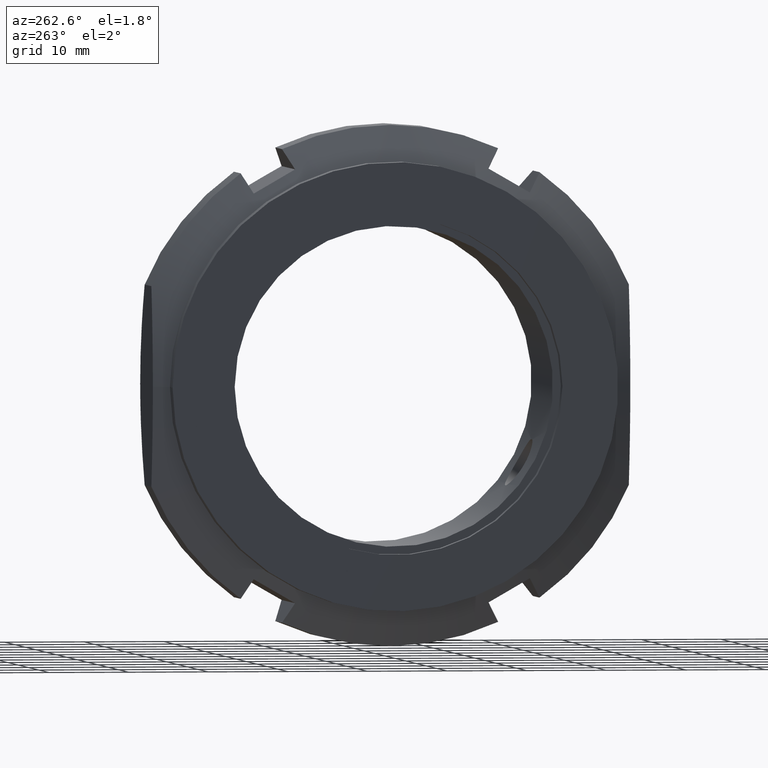
[diagram: clean part render]
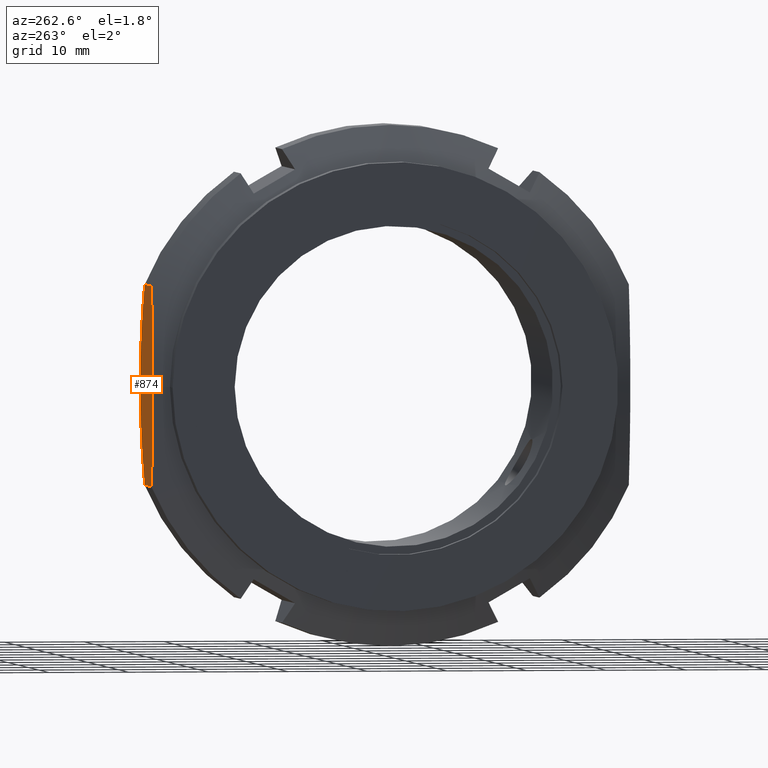
[diagram: same view with one face highlighted and labeled with its STEP entity id]
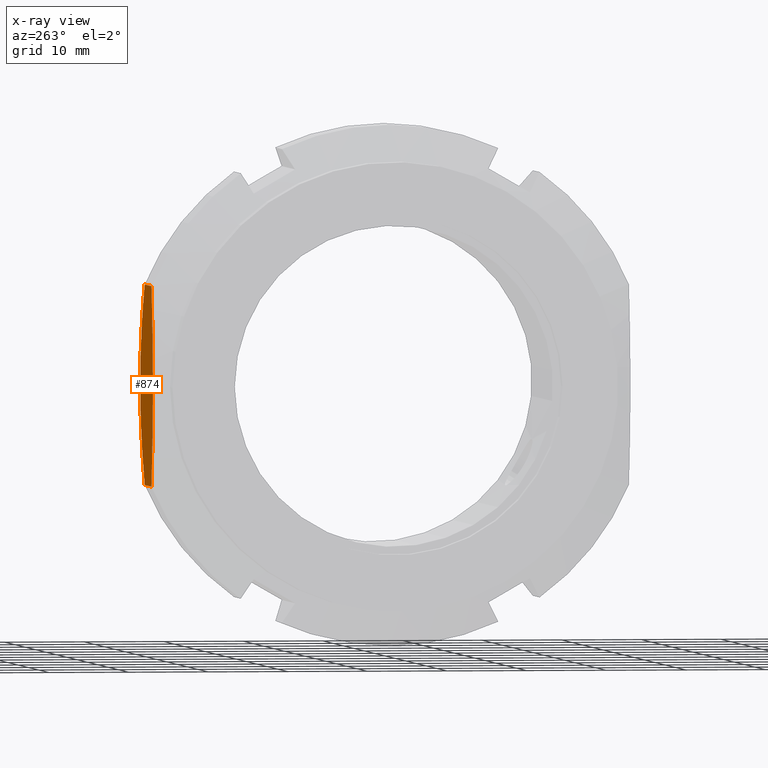
[diagram: x-ray of the same camera — body ghosted, the highlighted face saturated]
A machine part, auxiliary view. The second image highlights one B-rep face of the part: STEP entity #874.
The next image is the same camera in x-ray: the body ghosted, the highlighted face saturated — about 0% of this face is hidden behind the body in this view.
In plain terms, the highlighted planar face has unit normal (0, -1, 0).
Its self-contained STEP definition (entity closure, byte-faithful):
#517=CARTESIAN_POINT('',(5.098076211353302,30.00000000000005,12.499999999999854));
#518=VERTEX_POINT('',#517);
#526=CARTESIAN_POINT('',(5.098076211353302,30.000000000000039,-12.49999999999989));
#527=VERTEX_POINT('',#526);
#528=CARTESIAN_POINT('',(5.098076211353303,30.00000000000005,12.49999999999986));
#529=CARTESIAN_POINT('',(2.322353763326312,30.000000000000043,-1.569926E-014));
#530=CARTESIAN_POINT('',(5.098076211353302,30.000000000000039,-12.499999999999886));
#538=(BOUNDED_CURVE()B_SPLINE_CURVE(2,(#528,#529,#530),.UNSPECIFIED.,.F.,.U.)B_SPLINE_CURVE_WITH_KNOTS((3,3),(0.0,2.516611478423557),.UNSPECIFIED.)CURVE()GEOMETRIC_REPRESENTATION_ITEM()RATIONAL_B_SPLINE_CURVE((1.0,1.083333333333331,1.0))REPRESENTATION_ITEM(''));
#539=EDGE_CURVE('',#518,#527,#538,.T.);
#800=CARTESIAN_POINT('',(11.607695154586724,30.00000000000005,12.499999999999861));
#801=VERTEX_POINT('',#800);
#809=CARTESIAN_POINT('',(11.607695154586722,30.00000000000005,12.499999999999854));
#810=DIRECTION('',(-1.0,0.0,0.0));
#811=VECTOR('',#810,6.509618943233421);
#812=LINE('',#809,#811);
#813=EDGE_CURVE('',#801,#518,#812,.T.);
#844=CARTESIAN_POINT('',(0.0,30.000000000000089,100.0));
#845=DIRECTION('',(0.0,-1.0,0.0));
#846=DIRECTION('',(0.0,0.0,-1.0));
#847=AXIS2_PLACEMENT_3D('',#844,#845,#846);
#848=PLANE('',#847);
#849=ORIENTED_EDGE('',*,*,#539,.F.);
#850=ORIENTED_EDGE('',*,*,#813,.F.);
#851=CARTESIAN_POINT('',(11.607695154586724,30.000000000000039,-12.499999999999897));
#852=VERTEX_POINT('',#851);
#853=CARTESIAN_POINT('',(11.607695154586724,30.000000000000036,-12.499999999999908));
#854=CARTESIAN_POINT('',(19.934862498667737,30.000000000000043,-1.788227E-014));
#855=CARTESIAN_POINT('',(11.607695154586724,30.000000000000043,12.499999999999877));
#863=(BOUNDED_CURVE()B_SPLINE_CURVE(2,(#853,#854,#855),.UNSPECIFIED.,.F.,.U.)B_SPLINE_CURVE_WITH_KNOTS((3,3),(0.0,2.645751311064566),.UNSPECIFIED.)CURVE()GEOMETRIC_REPRESENTATION_ITEM()RATIONAL_B_SPLINE_CURVE((1.0,1.083333333333334,1.0))REPRESENTATION_ITEM(''));
#864=EDGE_CURVE('',#852,#801,#863,.T.);
#865=ORIENTED_EDGE('',*,*,#864,.F.);
#866=CARTESIAN_POINT('',(5.098076211353301,30.000000000000039,-12.49999999999989));
#867=DIRECTION('',(1.0,0.0,0.0));
#868=VECTOR('',#867,6.509618943233421);
#869=LINE('',#866,#868);
#870=EDGE_CURVE('',#527,#852,#869,.T.);
#871=ORIENTED_EDGE('',*,*,#870,.F.);
#872=EDGE_LOOP('',(#849,#850,#865,#871));
#873=FACE_OUTER_BOUND('',#872,.T.);
#874=ADVANCED_FACE('',(#873),#848,.F.);